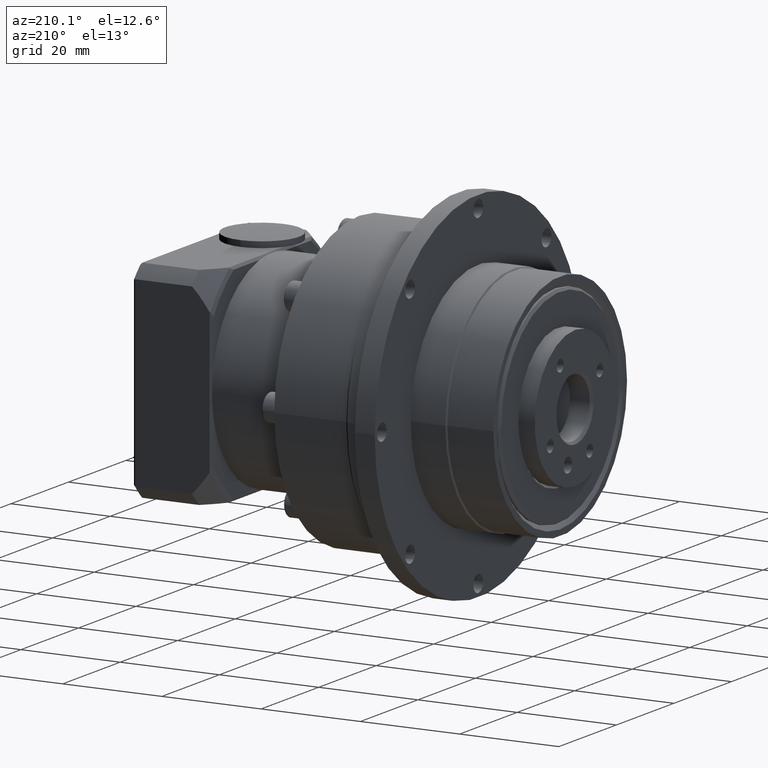
[diagram: clean part render]
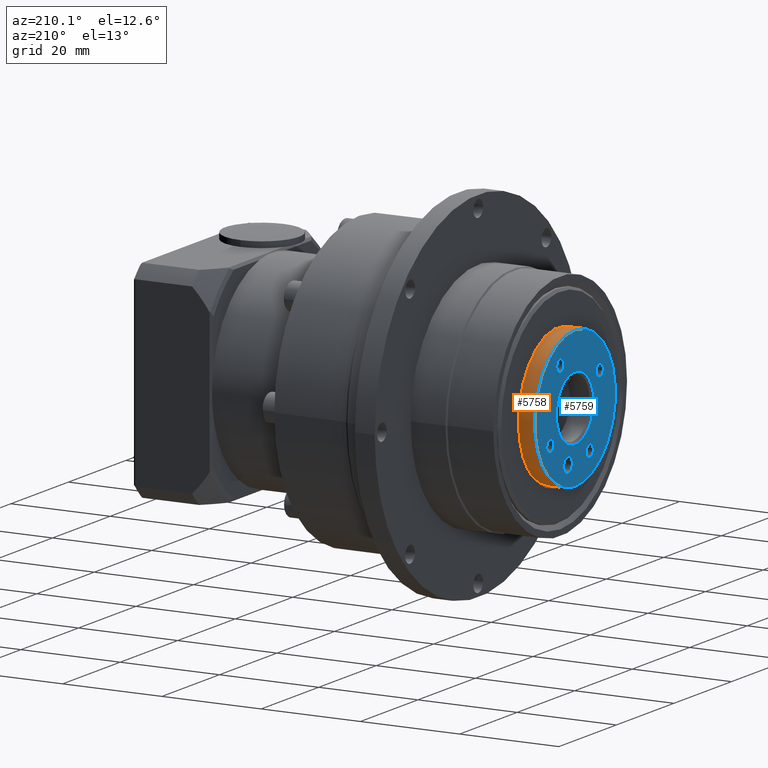
[diagram: same view with the hole feature highlighted: cylindrical wall and planar end face, labeled with their STEP entity ids]
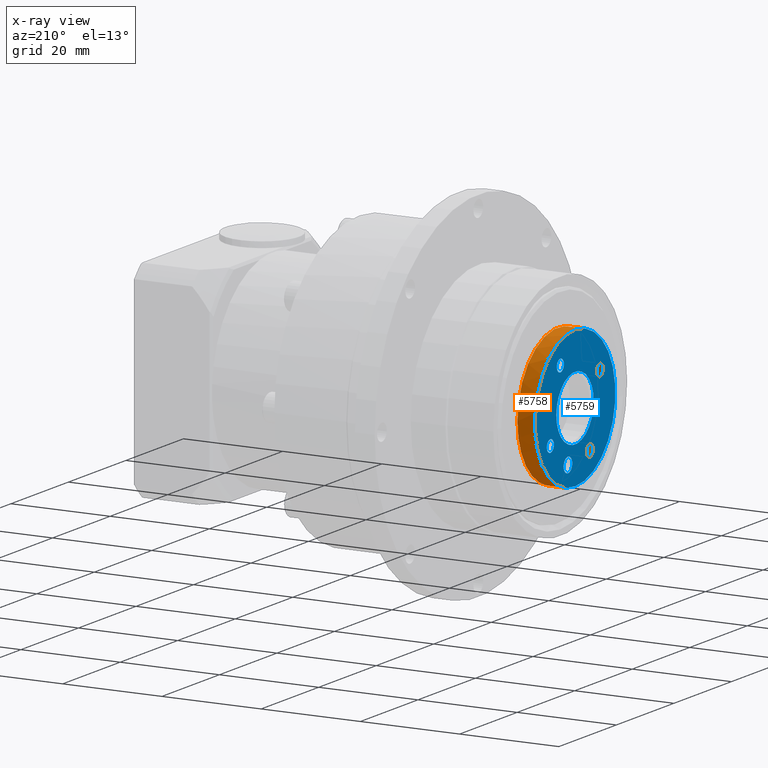
[diagram: x-ray of the same camera — body ghosted, the hole faces saturated]
A machine part, auxiliary view. The highlighted faces form one hole feature of diameter 28 mm: the cylindrical wall (entity #5758, orange) and its adjacent planar end face (entity #5759, blue) — they share a circular edge in the B-rep.
The next image is the same camera in x-ray (body ghosted, the hole faces saturated) — the bore reads through the body.
Wall:
#1089=FACE_BOUND('',#1936,.T.);
#1402=FACE_OUTER_BOUND('',#1935,.T.);
#1935=EDGE_LOOP('',(#4436));
#1936=EDGE_LOOP('',(#4437));
#2428=CIRCLE('',#6365,14.);
#2429=CIRCLE('',#6366,14.);
#2834=VERTEX_POINT('',#9382);
#2835=VERTEX_POINT('',#9384);
#3434=EDGE_CURVE('',#2834,#2834,#2428,.T.);
#3435=EDGE_CURVE('',#2835,#2835,#2429,.T.);
#4436=ORIENTED_EDGE('',*,*,#3434,.T.);
#4437=ORIENTED_EDGE('',*,*,#3435,.T.);
#5232=CYLINDRICAL_SURFACE('',#6364,14.);
#5758=ADVANCED_FACE('',(#1402,#1089),#5232,.T.);
#6364=AXIS2_PLACEMENT_3D('',#9381,#7567,#7568);
#6365=AXIS2_PLACEMENT_3D('',#9383,#7569,#7570);
#6366=AXIS2_PLACEMENT_3D('',#9385,#7571,#7572);
#7567=DIRECTION('center_axis',(1.,-1.48983721341743E-16,3.23635577620662E-15));
#7568=DIRECTION('ref_axis',(3.17375851097877E-15,0.245692629935898,-0.969347786707734));
#7569=DIRECTION('center_axis',(-1.,1.48983721341743E-16,-3.23635577620662E-15));
#7570=DIRECTION('ref_axis',(3.17375851097877E-15,0.245692629935898,-0.969347786707734));
#7571=DIRECTION('center_axis',(1.,-1.48983721341743E-16,3.23635577620662E-15));
#7572=DIRECTION('ref_axis',(6.50731721526339E-16,-0.969347786707734,-0.245692629935898));
#9381=CARTESIAN_POINT('Origin',(-28.5281758053591,-49.1307567443876,52.8867726493691));
#9382=CARTESIAN_POINT('',(-28.0951631034668,-35.1307567443876,52.8867726493691));
#9383=CARTESIAN_POINT('Origin',(-28.0951631034668,-49.1307567443876,52.8867726493691));
#9384=CARTESIAN_POINT('',(-31.5951631034668,-45.691059925285,39.3159036354608));
#9385=CARTESIAN_POINT('Origin',(-31.5951631034669,-49.1307567443876,52.8867726493691));
End face:
#860=PLANE('',#6367);
#1090=FACE_BOUND('',#1938,.T.);
#1091=FACE_BOUND('',#1939,.T.);
#1092=FACE_BOUND('',#1940,.T.);
#1093=FACE_BOUND('',#1941,.T.);
#1094=FACE_BOUND('',#1942,.T.);
#1095=FACE_BOUND('',#1943,.T.);
#1403=FACE_OUTER_BOUND('',#1937,.T.);
#1937=EDGE_LOOP('',(#4438));
#1938=EDGE_LOOP('',(#4439));
#1939=EDGE_LOOP('',(#4440));
#1940=EDGE_LOOP('',(#4441));
#1941=EDGE_LOOP('',(#4442));
#1942=EDGE_LOOP('',(#4443));
#1943=EDGE_LOOP('',(#4444));
#2429=CIRCLE('',#6366,14.);
#2430=CIRCLE('',#6368,1.5);
#2431=CIRCLE('',#6369,1.2295);
#2432=CIRCLE('',#6370,1.2295);
#2433=CIRCLE('',#6371,1.2295);
#2434=CIRCLE('',#6372,1.2295);
#2435=CIRCLE('',#6373,6.5);
#2835=VERTEX_POINT('',#9384);
#2836=VERTEX_POINT('',#9387);
#2837=VERTEX_POINT('',#9389);
#2838=VERTEX_POINT('',#9391);
#2839=VERTEX_POINT('',#9393);
#2840=VERTEX_POINT('',#9395);
#2841=VERTEX_POINT('',#9397);
#3435=EDGE_CURVE('',#2835,#2835,#2429,.T.);
#3436=EDGE_CURVE('',#2836,#2836,#2430,.T.);
#3437=EDGE_CURVE('',#2837,#2837,#2431,.T.);
#3438=EDGE_CURVE('',#2838,#2838,#2432,.T.);
#3439=EDGE_CURVE('',#2839,#2839,#2433,.T.);
#3440=EDGE_CURVE('',#2840,#2840,#2434,.T.);
#3441=EDGE_CURVE('',#2841,#2841,#2435,.T.);
#4438=ORIENTED_EDGE('',*,*,#3435,.F.);
#4439=ORIENTED_EDGE('',*,*,#3436,.T.);
#4440=ORIENTED_EDGE('',*,*,#3437,.T.);
#4441=ORIENTED_EDGE('',*,*,#3438,.T.);
#4442=ORIENTED_EDGE('',*,*,#3439,.T.);
#4443=ORIENTED_EDGE('',*,*,#3440,.T.);
#4444=ORIENTED_EDGE('',*,*,#3441,.F.);
#5759=ADVANCED_FACE('',(#1403,#1090,#1091,#1092,#1093,#1094,#1095),#860,
 .T.);
#6366=AXIS2_PLACEMENT_3D('',#9385,#7571,#7572);
#6367=AXIS2_PLACEMENT_3D('',#9386,#7573,#7574);
#6368=AXIS2_PLACEMENT_3D('',#9388,#7575,#7576);
#6369=AXIS2_PLACEMENT_3D('',#9390,#7577,#7578);
#6370=AXIS2_PLACEMENT_3D('',#9392,#7579,#7580);
#6371=AXIS2_PLACEMENT_3D('',#9394,#7581,#7582);
#6372=AXIS2_PLACEMENT_3D('',#9396,#7583,#7584);
#6373=AXIS2_PLACEMENT_3D('',#9398,#7585,#7586);
#7571=DIRECTION('center_axis',(1.,-1.48983721341743E-16,3.23635577620662E-15));
#7572=DIRECTION('ref_axis',(6.50731721526339E-16,-0.969347786707734,-0.245692629935898));
#7573=DIRECTION('center_axis',(-1.,1.48983721341743E-16,-3.23635577620662E-15));
#7574=DIRECTION('ref_axis',(-7.105427357601E-16,0.969347786707734,0.245692629935898));
#7575=DIRECTION('center_axis',(1.,-1.48983721341743E-16,3.23635577620662E-15));
#7576=DIRECTION('ref_axis',(-6.50731721526339E-16,0.969347786707734,0.245692629935898));
#7577=DIRECTION('center_axis',(1.,-1.48983721341743E-16,3.23635577620662E-15));
#7578=DIRECTION('ref_axis',(3.17375851097877E-15,0.245692629935898,-0.969347786707734));
#7579=DIRECTION('center_axis',(1.,-1.48983721341743E-16,3.23635577620662E-15));
#7580=DIRECTION('ref_axis',(6.50731721526338E-16,-0.969347786707734,-0.245692629935898));
#7581=DIRECTION('center_axis',(1.,-1.48983721341743E-16,3.23635577620662E-15));
#7582=DIRECTION('ref_axis',(-3.17375851097877E-15,-0.245692629935898,0.969347786707734));
#7583=DIRECTION('center_axis',(1.,-1.48983721341743E-16,3.23635577620662E-15));
#7584=DIRECTION('ref_axis',(-6.50731721526339E-16,0.969347786707734,0.245692629935898));
#7585=DIRECTION('center_axis',(-1.,1.48983721341743E-16,-3.23635577620662E-15));
#7586=DIRECTION('ref_axis',(6.50731721526339E-16,-0.969347786707734,-0.245692629935898));
#9384=CARTESIAN_POINT('',(-31.5951631034668,-45.691059925285,39.3159036354608));
#9385=CARTESIAN_POINT('Origin',(-31.5951631034669,-49.1307567443876,52.8867726493691));
#9386=CARTESIAN_POINT('Origin',(-31.5951631034668,-45.691059925285,39.3159036354608));
#9387=CARTESIAN_POINT('',(-31.5951631034668,-45.219808764967,43.5618337271956));
#9388=CARTESIAN_POINT('Origin',(-31.5951631034668,-46.6738304450286,43.1932947822917));
#9389=CARTESIAN_POINT('',(-31.5951631034668,-53.9456923418212,43.1033263653675));
#9390=CARTESIAN_POINT('Origin',(-31.5951631034668,-54.2477714303274,44.2951394691247));
#9391=CARTESIAN_POINT('',(-31.5951631034669,-58.9142030283891,57.7017082468027));
#9392=CARTESIAN_POINT('Origin',(-31.5951631034669,-57.722389924632,58.0037873353089));
#9393=CARTESIAN_POINT('',(-31.5951631034669,-44.315821146954,62.6702189333706));
#9394=CARTESIAN_POINT('Origin',(-31.5951631034669,-44.0137420584478,61.4784058296135));
#9395=CARTESIAN_POINT('',(-31.5951631034668,-39.347310460386,48.0718370519355));
#9396=CARTESIAN_POINT('Origin',(-31.5951631034668,-40.5391235641432,47.7697579634293));
#9397=CARTESIAN_POINT('',(-31.5951631034669,-42.8299961307873,54.4837747439524));
#9398=CARTESIAN_POINT('Origin',(-31.5951631034669,-49.1307567443876,52.8867726493691));